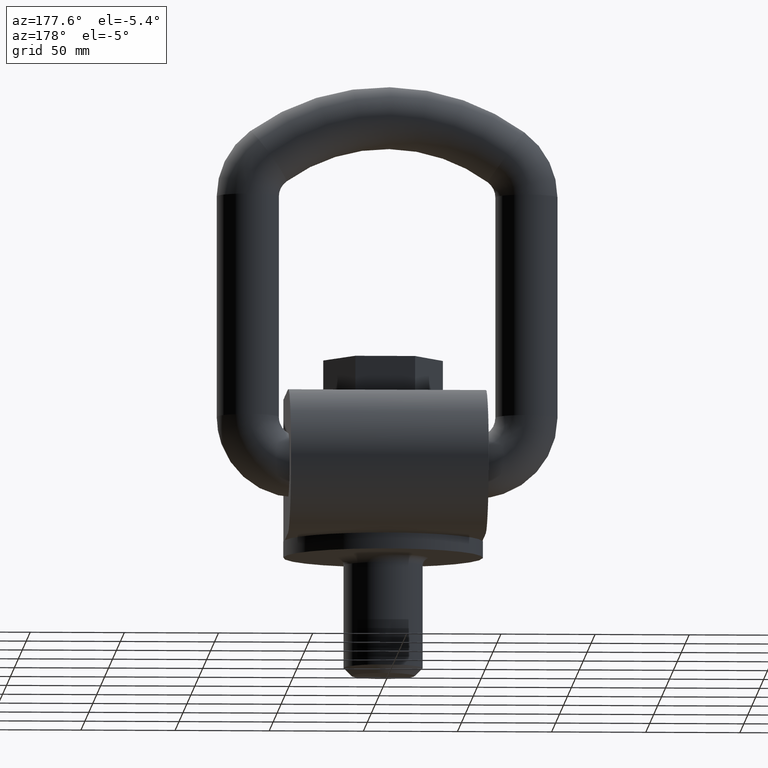
[diagram: clean part render]
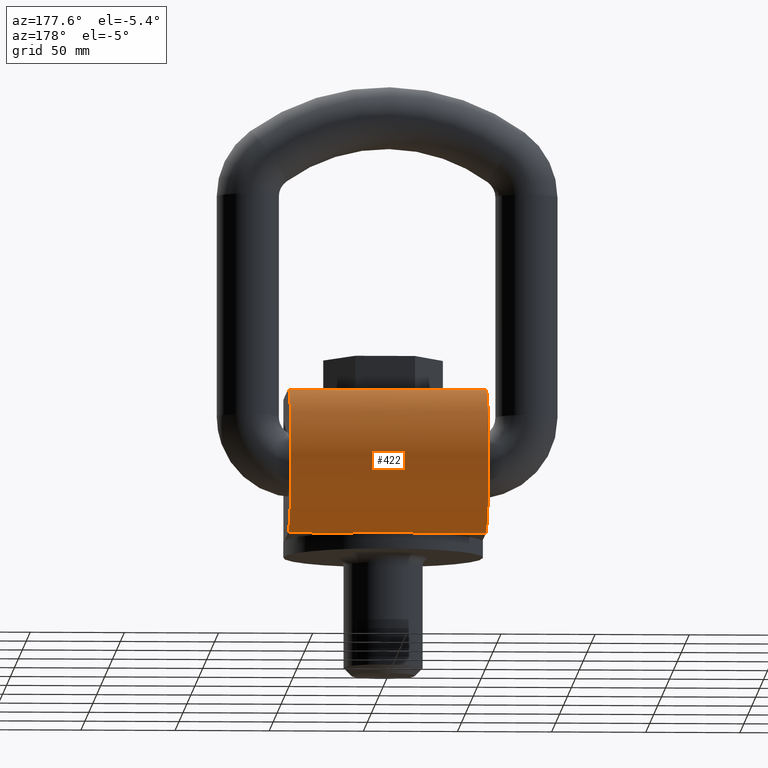
[diagram: same view with one face highlighted and labeled with its STEP entity id]
A machine part, auxiliary view. The second image highlights one B-rep face of the part: STEP entity #422.
In plain terms, the highlighted cylindrical surface (partial cylindrical patch) has radius 38.25 mm, axis along (-1, 0, 0).
Its self-contained STEP definition (entity closure, byte-faithful):
#311=FACE_OUTER_BOUND('',#653,.T.);
#422=ADVANCED_FACE('',(#311),#552,.T.);
#552=CYLINDRICAL_SURFACE('',#2531,38.25);
#653=EDGE_LOOP('',(#1243,#1244,#1245,#1246,#1247,#1248));
#814=LINE('',#3792,#946);
#815=LINE('',#3797,#947);
#818=LINE('',#3803,#950);
#820=LINE('',#3811,#952);
#946=VECTOR('',#2712,1.);
#947=VECTOR('',#2717,1.);
#950=VECTOR('',#2722,1.);
#952=VECTOR('',#2732,1.);
#1135=CIRCLE('',#2529,38.25);
#1136=CIRCLE('',#2530,38.25);
#1243=ORIENTED_EDGE('',*,*,#2086,.T.);
#1244=ORIENTED_EDGE('',*,*,#2083,.F.);
#1245=ORIENTED_EDGE('',*,*,#2087,.F.);
#1246=ORIENTED_EDGE('',*,*,#2080,.T.);
#1247=ORIENTED_EDGE('',*,*,#2088,.T.);
#1248=ORIENTED_EDGE('',*,*,#2078,.T.);
#1861=VERTEX_POINT('',#3789);
#1862=VERTEX_POINT('',#3791);
#1863=VERTEX_POINT('',#3795);
#1865=VERTEX_POINT('',#3798);
#1866=VERTEX_POINT('',#3802);
#1867=VERTEX_POINT('',#3804);
#2078=EDGE_CURVE('',#1861,#1862,#814,.T.);
#2080=EDGE_CURVE('',#1865,#1863,#815,.T.);
#2083=EDGE_CURVE('',#1866,#1867,#818,.T.);
#2086=EDGE_CURVE('',#1862,#1867,#1135,.T.);
#2087=EDGE_CURVE('',#1865,#1866,#1136,.T.);
#2088=EDGE_CURVE('',#1863,#1861,#820,.T.);
#2529=AXIS2_PLACEMENT_3D('',#3809,#2728,#2729);
#2530=AXIS2_PLACEMENT_3D('',#3810,#2730,#2731);
#2531=AXIS2_PLACEMENT_3D('',#3812,#2733,#2734);
#2712=DIRECTION('',(-1.,0.,0.));
#2717=DIRECTION('',(-1.,0.,0.));
#2722=DIRECTION('',(-1.,0.,0.));
#2728=DIRECTION('',(1.,0.,0.));
#2729=DIRECTION('',(0.,1.,0.));
#2730=DIRECTION('',(1.,0.,0.));
#2731=DIRECTION('',(0.,1.,0.));
#2732=DIRECTION('',(-1.,0.,0.));
#2733=DIRECTION('',(-1.,0.,0.));
#2734=DIRECTION('',(0.,0.,1.));
#3789=CARTESIAN_POINT('',(-20.795131641805,48.75,7.94860999328799E-15));
#3791=CARTESIAN_POINT('',(-52.5,48.75,7.94860999328799E-15));
#3792=CARTESIAN_POINT('',(52.5,48.75,7.94860999328799E-15));
#3795=CARTESIAN_POINT('',(20.795131641805,48.75,7.94860999328799E-15));
#3797=CARTESIAN_POINT('',(52.5,48.75,7.94860999328799E-15));
#3798=CARTESIAN_POINT('',(52.5,48.75,7.94860999328799E-15));
#3802=CARTESIAN_POINT('',(52.5,48.75,76.5));
#3803=CARTESIAN_POINT('',(52.5,48.75,76.5));
#3804=CARTESIAN_POINT('',(-52.5,48.75,76.5));
#3809=CARTESIAN_POINT('',(-52.5,48.75,38.25));
#3810=CARTESIAN_POINT('',(52.5,48.75,38.25));
#3811=CARTESIAN_POINT('',(52.5,48.75,7.94860999328799E-15));
#3812=CARTESIAN_POINT('',(52.5,48.75,38.25));